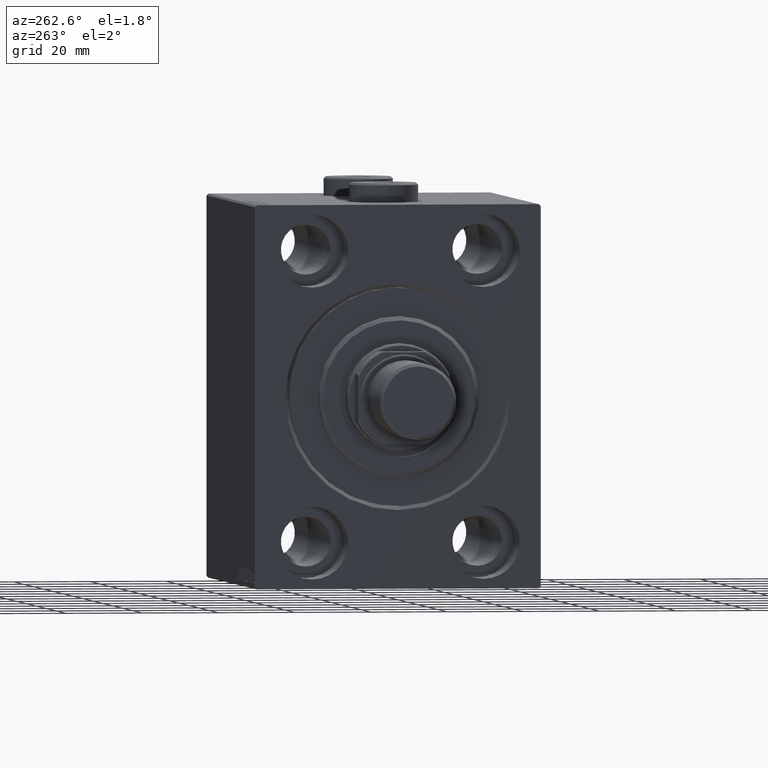
[diagram: clean part render]
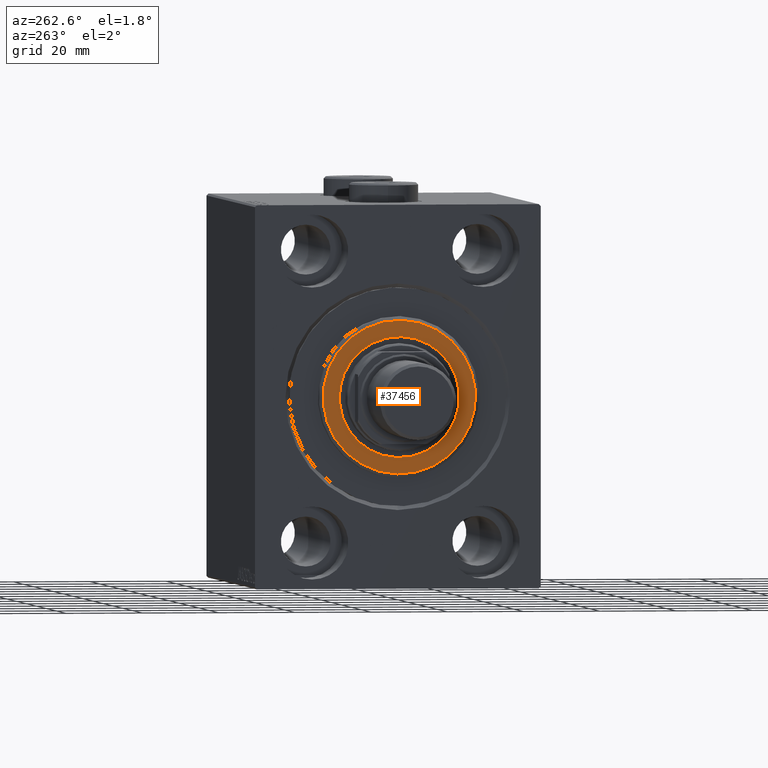
[diagram: same view with one face highlighted and labeled with its STEP entity id]
A machine part, auxiliary view. The second image highlights one B-rep face of the part: STEP entity #37456.
In plain terms, the highlighted planar face has unit normal (-1, 0, 0).
Its self-contained STEP definition (entity closure, byte-faithful):
#1789 = FACE_OUTER_BOUND ( 'NONE', #8076, .T. ) ;
#2008 = VERTEX_POINT ( 'NONE', #29410 ) ;
#2609 = DIRECTION ( 'NONE',  ( -1.000000000000000000, 0.000000000000000000, -0.000000000000000000 ) ) ;
#3062 = EDGE_CURVE ( 'NONE', #40511, #2008, #38014, .T. ) ;
#8076 = EDGE_LOOP ( 'NONE', ( #30349, #45584 ) ) ;
#11359 = CARTESIAN_POINT ( 'NONE',  ( 3.000000000000000000, 1.928818708657080950E-15, -15.75000000000000000 ) ) ;
#12218 = CARTESIAN_POINT ( 'NONE',  ( 3.000000000000000000, 0.000000000000000000, 0.000000000000000000 ) ) ;
#13195 = CIRCLE ( 'NONE', #14653, 19.99999999999999645 ) ;
#13412 = CARTESIAN_POINT ( 'NONE',  ( 3.000000000000000000, 0.000000000000000000, 0.000000000000000000 ) ) ;
#14118 = ORIENTED_EDGE ( 'NONE', *, *, #37190, .T. ) ;
#14653 = AXIS2_PLACEMENT_3D ( 'NONE', #28110, #42228, #17203 ) ;
#15906 = PLANE ( 'NONE',  #39160 ) ;
#17203 = DIRECTION ( 'NONE',  ( 0.000000000000000000, 0.000000000000000000, -1.000000000000000000 ) ) ;
#17992 = AXIS2_PLACEMENT_3D ( 'NONE', #13412, #28010, #38221 ) ;
#19725 = DIRECTION ( 'NONE',  ( -1.000000000000000000, 0.000000000000000000, -0.000000000000000000 ) ) ;
#22867 = CIRCLE ( 'NONE', #31034, 15.75000000000000000 ) ;
#23326 = FACE_BOUND ( 'NONE', #27567, .T. ) ;
#25681 = VERTEX_POINT ( 'NONE', #43534 ) ;
#25807 = AXIS2_PLACEMENT_3D ( 'NONE', #31720, #19725, #37351 ) ;
#26110 = DIRECTION ( 'NONE',  ( 0.000000000000000000, 0.000000000000000000, -1.000000000000000000 ) ) ;
#26344 = DIRECTION ( 'NONE',  ( 1.000000000000000000, -0.000000000000000000, 0.000000000000000000 ) ) ;
#27567 = EDGE_LOOP ( 'NONE', ( #33083, #14118 ) ) ;
#28010 = DIRECTION ( 'NONE',  ( 1.000000000000000000, -0.000000000000000000, 0.000000000000000000 ) ) ;
#28055 = CIRCLE ( 'NONE', #25807, 15.75000000000000000 ) ;
#28110 = CARTESIAN_POINT ( 'NONE',  ( 3.000000000000000000, 0.000000000000000000, 0.000000000000000000 ) ) ;
#29410 = CARTESIAN_POINT ( 'NONE',  ( 3.000000000000000000, 2.510525938252074087E-15, -19.99999999999999645 ) ) ;
#30349 = ORIENTED_EDGE ( 'NONE', *, *, #3062, .T. ) ;
#30870 = DIRECTION ( 'NONE',  ( 0.000000000000000000, 0.000000000000000000, -1.000000000000000000 ) ) ;
#31034 = AXIS2_PLACEMENT_3D ( 'NONE', #31330, #2609, #30870 ) ;
#31330 = CARTESIAN_POINT ( 'NONE',  ( 3.000000000000000000, 0.000000000000000000, 0.000000000000000000 ) ) ;
#31720 = CARTESIAN_POINT ( 'NONE',  ( 3.000000000000000000, 0.000000000000000000, 0.000000000000000000 ) ) ;
#31953 = CARTESIAN_POINT ( 'NONE',  ( 3.000000000000000000, 0.000000000000000000, 19.99999999999999645 ) ) ;
#33083 = ORIENTED_EDGE ( 'NONE', *, *, #38097, .T. ) ;
#35983 = EDGE_CURVE ( 'NONE', #2008, #40511, #13195, .T. ) ;
#37190 = EDGE_CURVE ( 'NONE', #40181, #25681, #28055, .T. ) ;
#37351 = DIRECTION ( 'NONE',  ( 0.000000000000000000, 0.000000000000000000, -1.000000000000000000 ) ) ;
#37456 = ADVANCED_FACE ( 'NONE', ( #1789, #23326 ), #15906, .T. ) ;
#38014 = CIRCLE ( 'NONE', #17992, 19.99999999999999645 ) ;
#38097 = EDGE_CURVE ( 'NONE', #25681, #40181, #22867, .T. ) ;
#38221 = DIRECTION ( 'NONE',  ( 0.000000000000000000, 0.000000000000000000, -1.000000000000000000 ) ) ;
#39160 = AXIS2_PLACEMENT_3D ( 'NONE', #12218, #26344, #26110 ) ;
#40181 = VERTEX_POINT ( 'NONE', #11359 ) ;
#40511 = VERTEX_POINT ( 'NONE', #31953 ) ;
#42228 = DIRECTION ( 'NONE',  ( 1.000000000000000000, -0.000000000000000000, 0.000000000000000000 ) ) ;
#43534 = CARTESIAN_POINT ( 'NONE',  ( 3.000000000000000000, 0.000000000000000000, 15.75000000000000000 ) ) ;
#45584 = ORIENTED_EDGE ( 'NONE', *, *, #35983, .T. ) ;